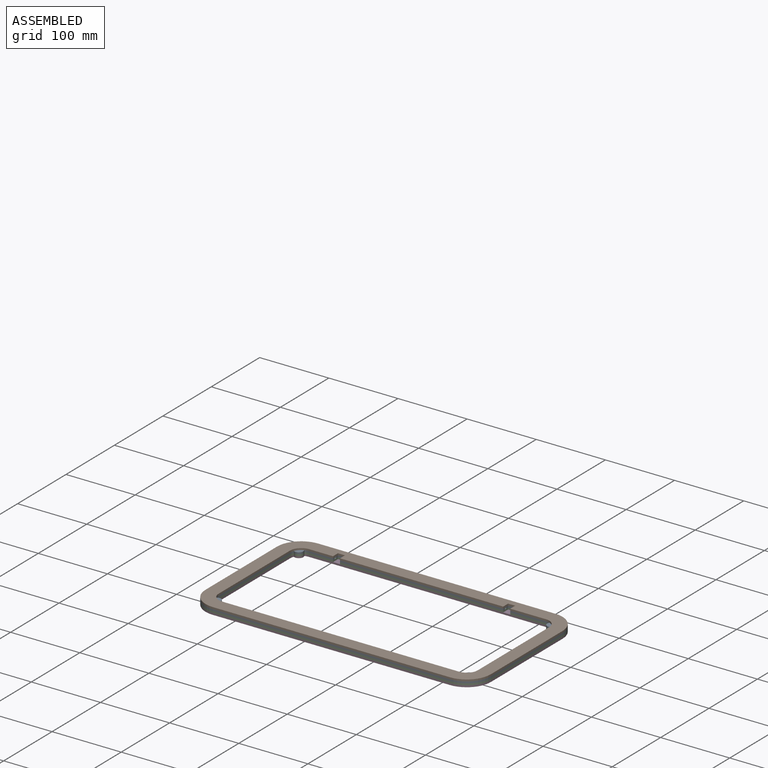
[diagram: assembled view]
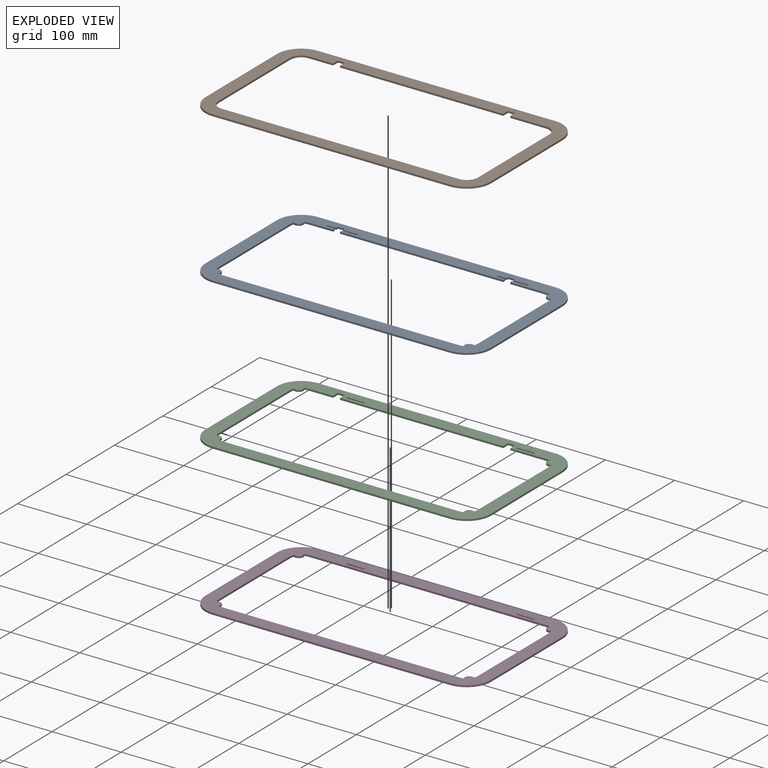
[diagram: exploded view]
GUIDED TOUR — MATED ASSEMBLY (Onshape document 8e4a6fc243fa08abb7a42ebe, AutoMate assembly 8e4a6fc243fa08abb7a42ebe_5dae76b4aeee1ec84f2fb12b_7c1a2a0859e6c54942b80f8e_default)

This assembly has 4 components, labeled P0..P3 below (a component is one placed occurrence of a part; the same part can appear more than once), held together by 3 mates. A mate is a constraint between two components; its type names the relative motion it leaves free:
  FASTENED — locks the two components together rigidly (no relative motion).
Axis/direction vectors are unit vectors and 'through' points are millimeter coordinates, both in the assembly's world frame.

MATES
  1. FASTENED "Fastened 2": P0 <-> P2, direction (0.000, 0.000, -1.000) through (-171.45, 73.82, -2.54) mm
  2. FASTENED "Fastened 1": P0 <-> P1, direction (0.000, 0.000, 1.000) through (-171.45, 73.82, 0.00) mm
  3. FASTENED "Fastened 3": P2 <-> P3, direction (0.000, 0.000, -1.000) through (-171.45, 73.82, -5.08) mm

ASSEMBLY ORDER
  1. P3 — the base component [order verified]
  2. P2 [order verified]
  3. P0 [order verified]
  4. P1 [order verified]
Order-tag legend:
  [order verified] — this step's position reverses a verified removal order: the component was checked to insert without passing through the ones already placed.

Of the 4 components, 1 carries the full construction recipe — the FeatureScript program that regenerates the part's solid from scratch; the rest are supplied as boundary geometry only.
Each toured component is shown spotlighted twice — in the assembled view, then in the exploded view, where a leader line traces a displaced component back to its assembled socket (saturated green if recipe-attached, orange if geometry-only; every other component desaturated gray) — followed by its recipe or geometry summary and the mates that hold it.
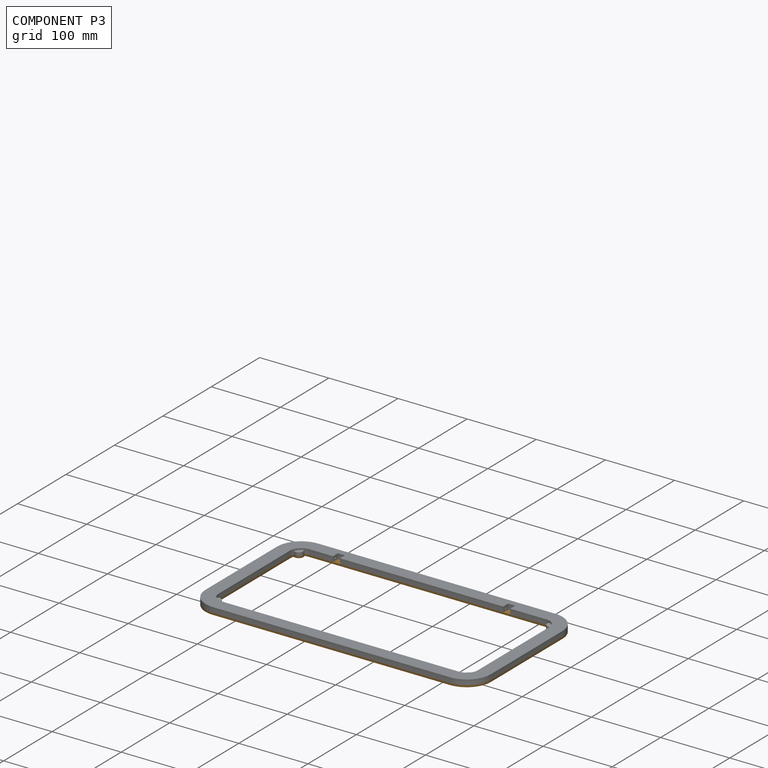
[diagram: component P3 — assembled]
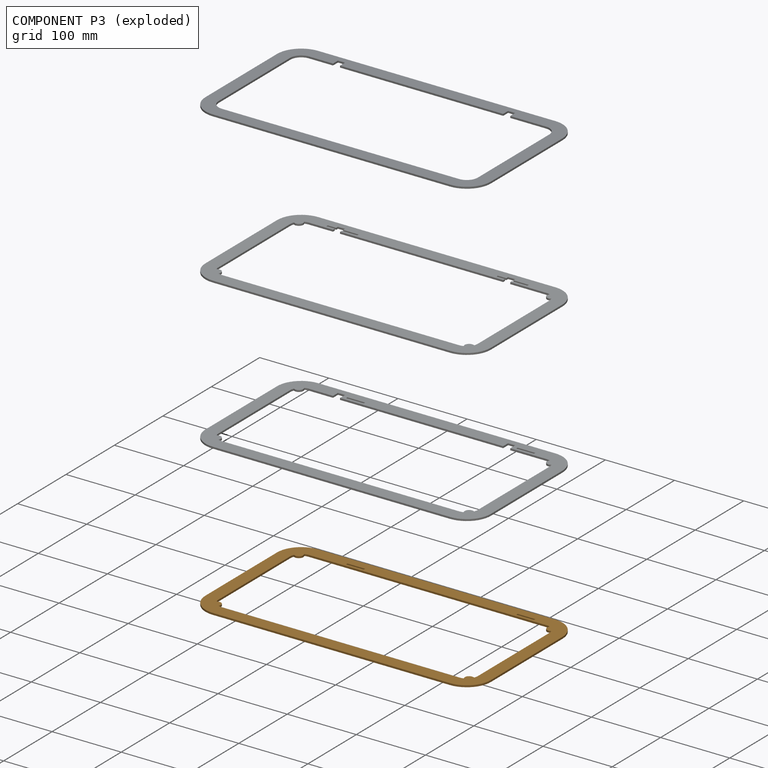
[diagram: component P3 — exploded]
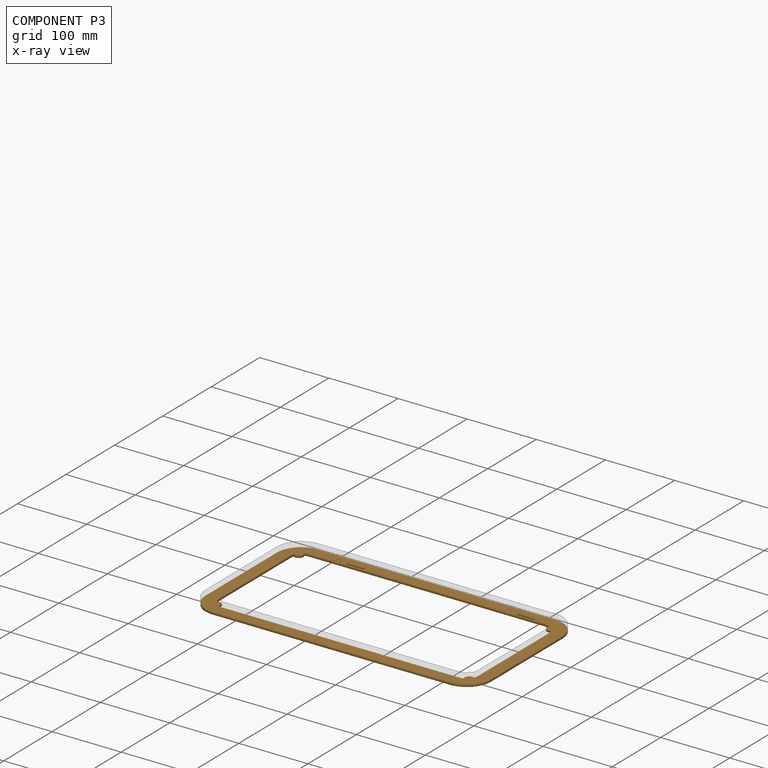
[diagram: component P3 — x-ray view]
COMPONENT P3 — geometry summary (no construction recipe available for this part):
  bounding box: 412.8 x 217.5 x 2.5 mm
  B-rep topology: 1 solid, 34 faces, 192 edges
  volume: 55422 mm^3 (24% of its bounding box)
  symmetry: 2-fold rotationally symmetric about the x axis; 2-fold rotationally symmetric about the y axis; 2-fold rotationally symmetric about the z axis; mirror-symmetric across its x mid-plane, y mid-plane, z mid-plane
Held by: FASTENED mate "Fastened 3" to P2.
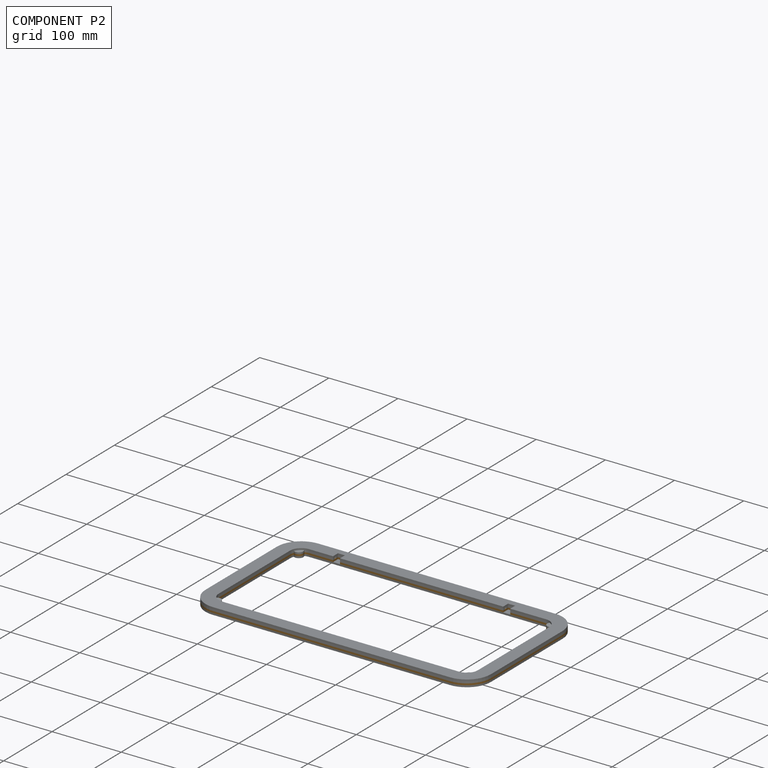
[diagram: component P2 — assembled]
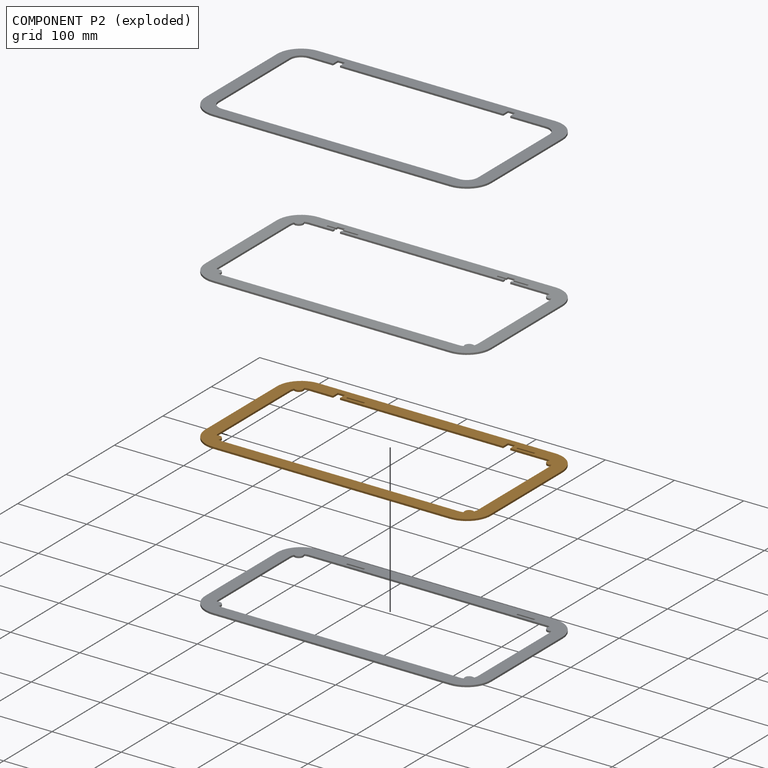
[diagram: component P2 — exploded]
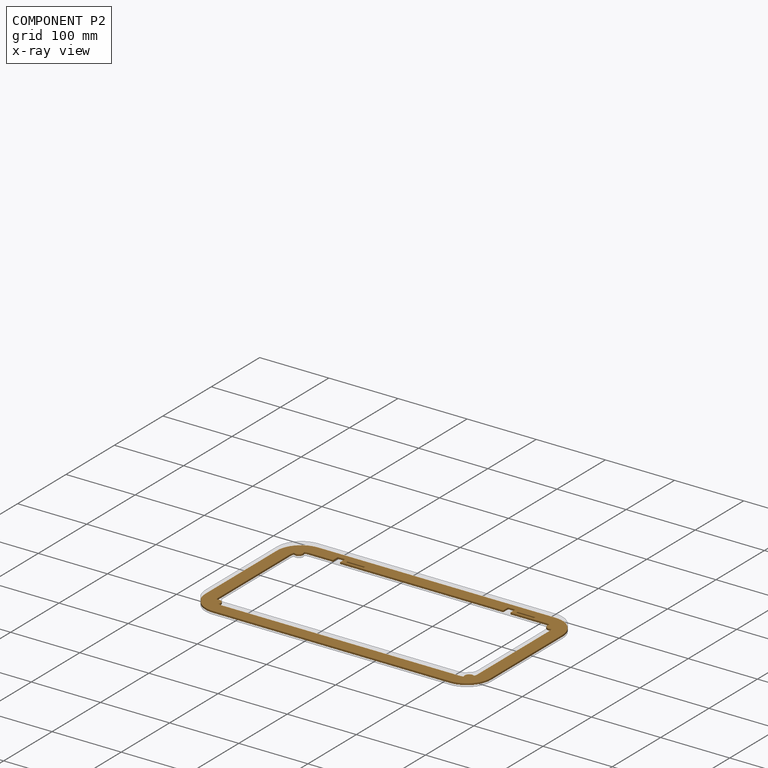
[diagram: component P2 — x-ray view]
COMPONENT P2 — geometry summary (no construction recipe available for this part):
  bounding box: 412.8 x 217.5 x 2.5 mm
  B-rep topology: 1 solid, 42 faces, 240 edges
  volume: 54897 mm^3 (24% of its bounding box)
  symmetry: 2-fold rotationally symmetric about the z axis; mirror-symmetric across its z mid-plane
Held by: FASTENED mate "Fastened 2" to P0; FASTENED mate "Fastened 3" to P3.
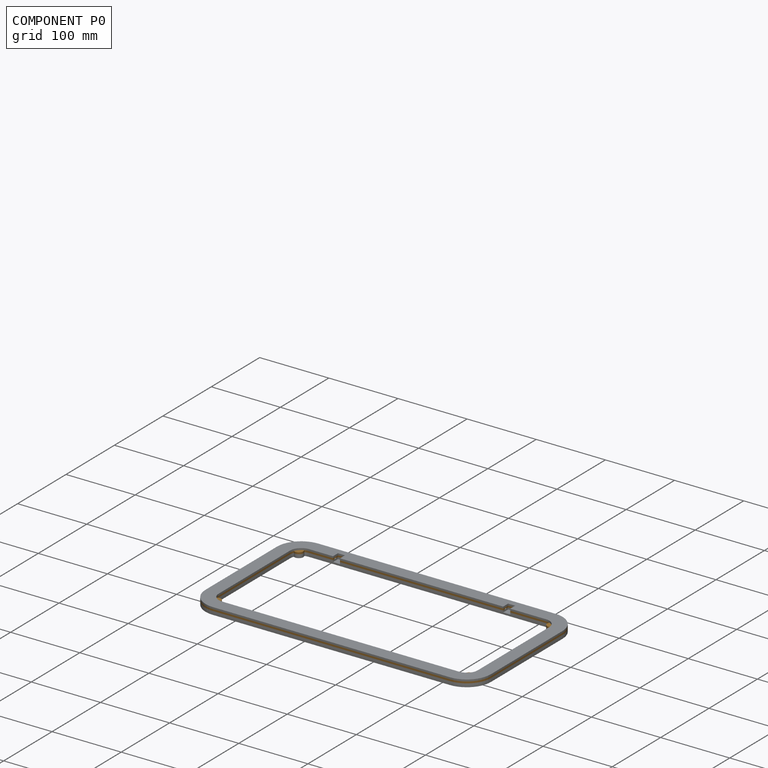
[diagram: component P0 — assembled]
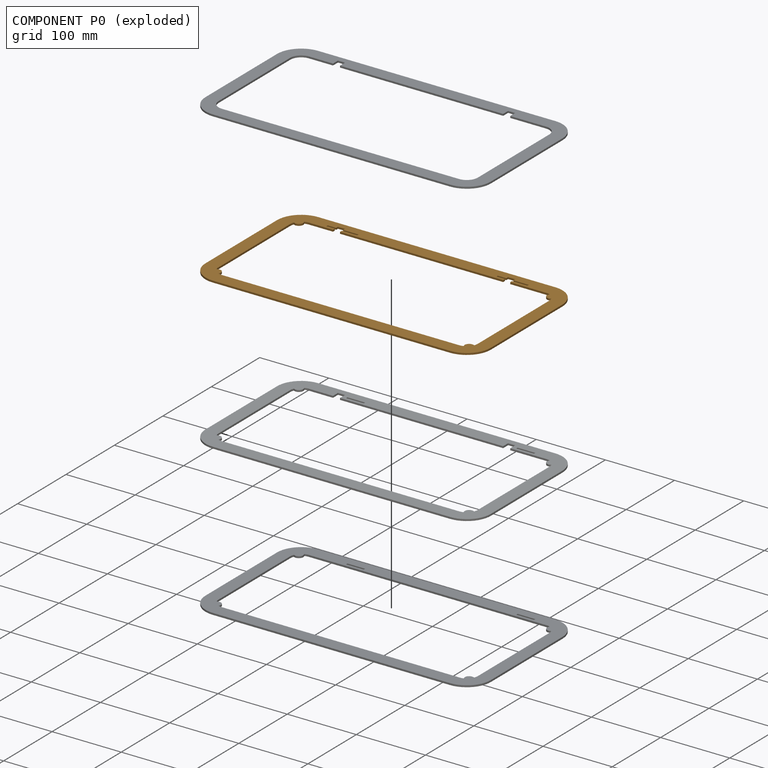
[diagram: component P0 — exploded]
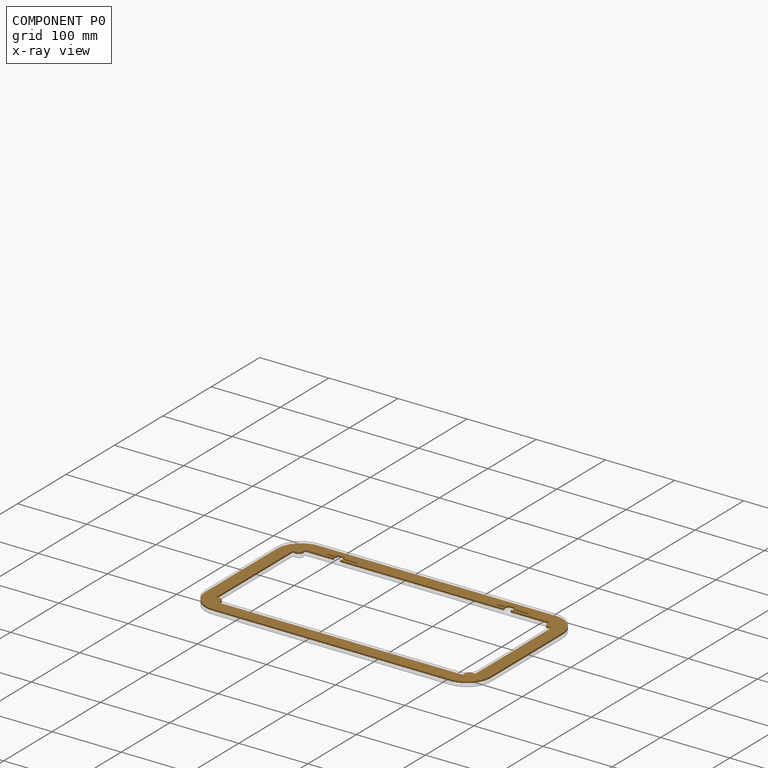
[diagram: component P0 — x-ray view]
COMPONENT P0 — geometry summary (no construction recipe available for this part):
  bounding box: 412.8 x 217.5 x 2.5 mm
  B-rep topology: 1 solid, 50 faces, 288 edges
  volume: 54771 mm^3 (24% of its bounding box)
  symmetry: 2-fold rotationally symmetric about the z axis; mirror-symmetric across its z mid-plane
Held by: FASTENED mate "Fastened 2" to P2; FASTENED mate "Fastened 1" to P1.
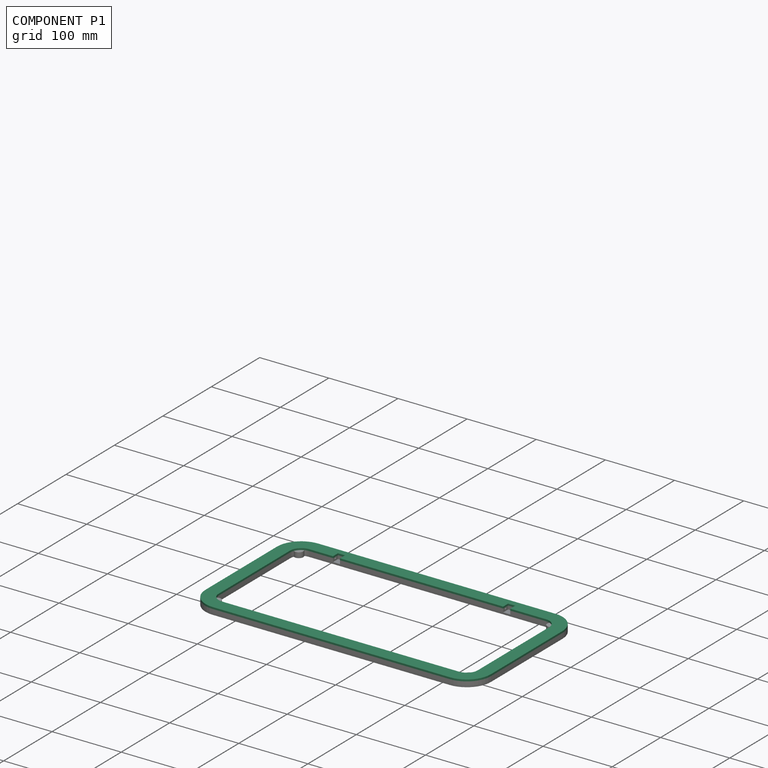
[diagram: component P1 — assembled]
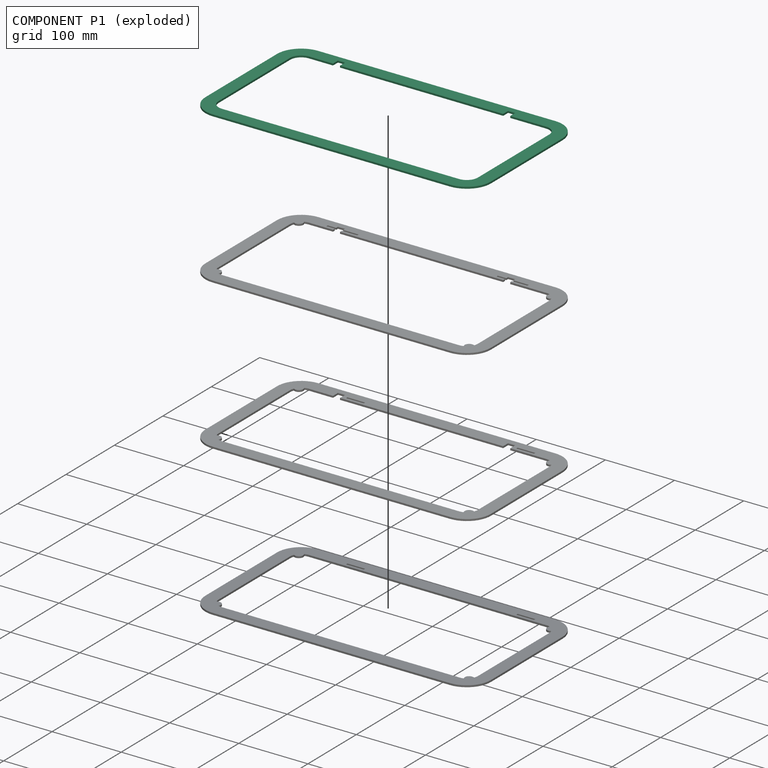
[diagram: component P1 — exploded]
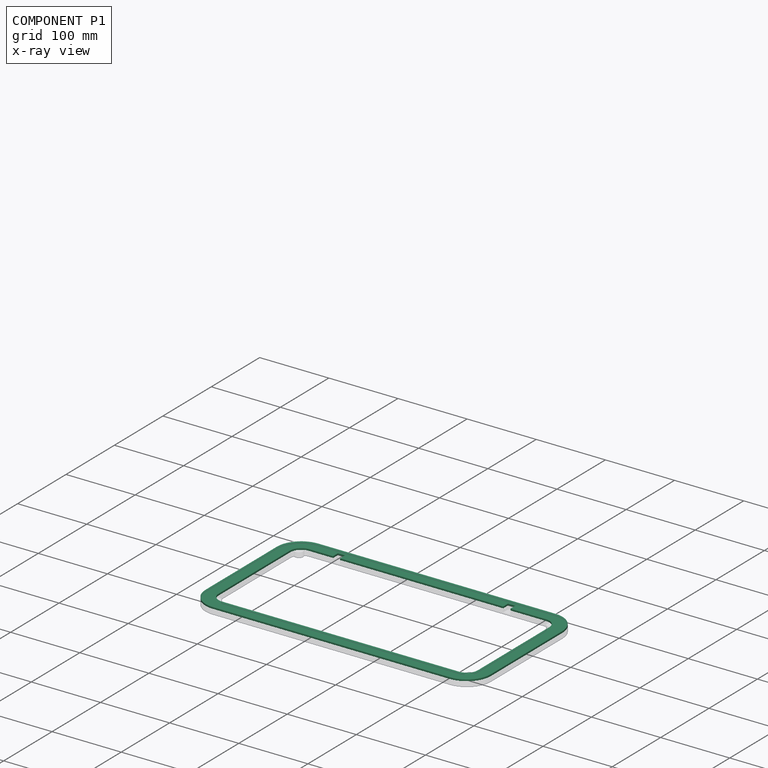
[diagram: component P1 — x-ray view]
COMPONENT P1 — recipe-attached (CADFS 00196776, mesh-verified: the recipe's output STEP matches this component's geometry to below the mesh-comparison resolution (tessellation chordal tolerance ~0.7 mm)).
Held by: FASTENED mate "Fastened 1" to P0.
Construction recipe (FeatureScript — the CAD program that rebuilds this solid; sketch coordinates are in the units given by the * unit suffixes, e.g. mm):

FeatureScript 1511;
import(path : "onshape/std/geometry.fs", version : "1511.0");
import(path : "onshape/std/common.fs", version : "1511.0");
const mm = millimeter;
const VERTEX = EntityType.VERTEX;
const EDGE = EntityType.EDGE;
const FACE = EntityType.FACE;
const BODY = EntityType.BODY;
function v(x, y){return vector(x, y);}
function OD(order){return orderDisambiguation(order);}
function OSD(set){return originalSetDisambiguation(set);}
function TD(topology){return topologyDisambiguation(topology);}
function TDD(query){return trueDependencyDisambiguation(query);}
function sQuery(a, b, c) {return sketchEntityQuery(a, b, c);}

annotation { "Feature Type Name" : "Feature", "Feature Type Description" : "" }
export const myFeature = defineFeature(function(context is Context, id is Id, definition is map)
    precondition{}
    {
        {
            var Q0;
            Q0=qCreatedBy(makeId("Top.planeOp"),FACE);
            var sketch = newSketch(context, id + "F0", { "sketchPlane" : qUnion([Q0])});
            skLineSegment(sketch, "E0.bottom", {"start": v(171.45, -89.7) * mm, "end": v(-171.45, -89.7) * mm});
            skLineSegment(sketch, "E0.top", {"start": v(171.45, 89.7) * mm, "end": v(-171.45, 89.7) * mm});
            skLineSegment(sketch, "E0.left", {"start": v(187.33, -73.82) * mm, "end": v(187.33, 73.82) * mm});
            skLineSegment(sketch, "E0.right", {"start": v(-187.32, -73.82) * mm, "end": v(-187.33, 73.82) * mm});
            skPoint(sketch, "E0.middle", {"position": v(0, 0) * mm});
            skPoint(sketch, "E1.visualSharp", {"position": v(-187.33, 89.7) * mm});
            skArc(sketch, "E1.filletArc", {"start": v(-171.45, 89.7) * mm, "mid": v(-182.68, 85.04) * mm, "end": v(-187.33, 73.82) * mm});
            skPoint(sketch, "E2.visualSharp", {"position": v(-187.33, -89.7) * mm});
            skArc(sketch, "E2.filletArc", {"start": v(-187.32, -73.82) * mm, "mid": v(-182.68, -85.04) * mm, "end": v(-171.45, -89.7) * mm});
            skPoint(sketch, "E3.visualSharp", {"position": v(187.33, -89.7) * mm});
            skArc(sketch, "E3.filletArc", {"start": v(171.45, -89.7) * mm, "mid": v(182.68, -85.04) * mm, "end": v(187.33, -73.82) * mm});
            skPoint(sketch, "E4.visualSharp", {"position": v(187.33, 89.7) * mm});
            skArc(sketch, "E4.filletArc", {"start": v(187.33, 73.82) * mm, "mid": v(182.68, 85.04) * mm, "end": v(171.45, 89.7) * mm});
            skArc(sketch, "E5.0", {"start": v(206.38, 73.82) * mm, "mid": v(196.15, 98.51) * mm, "end": v(171.45, 108.74) * mm});
            skLineSegment(sketch, "E5.1", {"start": v(206.38, -73.82) * mm, "end": v(206.38, 73.82) * mm});
            skLineSegment(sketch, "E5.2", {"start": v(171.45, 108.74) * mm, "end": v(-171.45, 108.74) * mm});
            skArc(sketch, "E5.3", {"start": v(171.45, -108.74) * mm, "mid": v(196.15, -98.51) * mm, "end": v(206.38, -73.82) * mm});
            skArc(sketch, "E5.4", {"start": v(-171.45, 108.74) * mm, "mid": v(-196.15, 98.51) * mm, "end": v(-206.38, 73.82) * mm});
            skLineSegment(sketch, "E5.5", {"start": v(-206.38, -73.82) * mm, "end": v(-206.38, 73.82) * mm});
            skArc(sketch, "E5.6", {"start": v(-206.37, -73.82) * mm, "mid": v(-196.15, -98.51) * mm, "end": v(-171.45, -108.74) * mm});
            skLineSegment(sketch, "E5.7", {"start": v(171.45, -108.74) * mm, "end": v(-171.45, -108.74) * mm});
            skSolve(sketch);
        }
        {
            var Q0;
            Q0 = qSketchRegion(id + "F0", true);
            extrude(context, id + "F1", {"entities" : qUnion([Q0]), "depth" : 2.54 * mm});
        }
        {
            var Q0;
            Q0=makeQuery(id+"F1.opExtrude","CAP_FACE",FACE,{"disambiguationData":[OSD([sQuery(id+"F0.wireOp",EDGE,"E0.bottom"),sQuery(id+"F0.wireOp",EDGE,"E0.top"),sQuery(id+"F0.wireOp",EDGE,"E0.left"),sQuery(id+"F0.wireOp",EDGE,"E0.right"),sQuery(id+"F0.wireOp",EDGE,"E1.filletArc"),sQuery(id+"F0.wireOp",EDGE,"E2.filletArc"),sQuery(id+"F0.wireOp",EDGE,"E3.filletArc"),sQuery(id+"F0.wireOp",EDGE,"E4.filletArc"),sQuery(id+"F0.wireOp",EDGE,"E5.0"),sQuery(id+"F0.wireOp",EDGE,"E5.1"),sQuery(id+"F0.wireOp",EDGE,"E5.2"),sQuery(id+"F0.wireOp",EDGE,"E5.3"),sQuery(id+"F0.wireOp",EDGE,"E5.4"),sQuery(id+"F0.wireOp",EDGE,"E5.5"),sQuery(id+"F0.wireOp",EDGE,"E5.6"),sQuery(id+"F0.wireOp",EDGE,"E5.7")])],"isStart":false});
            var sketch = newSketch(context, id + "F2", { "sketchPlane" : qUnion([Q0])});
            skLineSegment(sketch, "E6.bottom", {"start": v(-136.53, 89.7) * mm, "end": v(-126.37, 89.7) * mm});
            skLineSegment(sketch, "E6.top", {"start": v(-136.53, 99.85) * mm, "end": v(-126.37, 99.85) * mm});
            skLineSegment(sketch, "E6.left", {"start": v(-136.53, 89.7) * mm, "end": v(-136.53, 99.85) * mm});
            skLineSegment(sketch, "E6.right", {"start": v(-126.37, 89.7) * mm, "end": v(-126.37, 99.85) * mm});
            skLineSegment(sketch, "E7.bottom", {"start": v(109.54, 89.7) * mm, "end": v(119.7, 89.7) * mm});
            skLineSegment(sketch, "E7.top", {"start": v(109.54, 99.85) * mm, "end": v(119.7, 99.85) * mm});
            skLineSegment(sketch, "E7.left", {"start": v(109.54, 89.7) * mm, "end": v(109.54, 99.85) * mm});
            skLineSegment(sketch, "E7.right", {"start": v(119.7, 89.7) * mm, "end": v(119.7, 99.85) * mm});
            skSolve(sketch);
        }
        {
            var Q0;
            Q0 = qSketchRegion(id + "F2", true);
            extrude(context, id + "F3", {"entities" : qUnion([Q0]), "operationType" : NewBodyOperationType.REMOVE, "endBound" : BoundingType.UP_TO_NEXT, "oppositeDirection" : true, "depth" : 25.4 * mm});
        }
    });
PROVENANCE & LICENSES
Assembly (occurrences, transforms, mates, per-part STEP geometry): AutoMate dataset, Zenodo record 7776208, CC0.
Construction recipes: CADFS (HuggingFace VladPyatov/CADFS, CC-BY-4.0, layered over the ABC dataset), FeatureScript reconstruction programs keyed by ABC model id.
Join: ABC meta listings map ABC model id -> Onshape documentId; within a shared document, parts are matched by geometric signature (bounding-box dims + volume at 0.1% relative tolerance, exact B-rep face/solid counts).
Verification: 1 of this assembly's 4 components carries a recipe attachment, and every attachment is mesh-verified: the CADFS STEP and the AutoMate member STEP were compared as meshes in their shared local frame (symmetric sampled-point-to-mesh distance); worst across the 1 attachment: below the mesh-comparison resolution (tessellation chordal tolerance ~0.7 mm) on a 467 mm part.
Renders: orthographic iso camera (az 35 / el 25); the floor grid conveys scale (grid pitch printed in each image; no ruler). In the exploded view each component is displaced by its stored offset vector: the offsets alone carry the explosion direction (mate normal/axis signs are not orientation cues and do not encode it), and separation distances are assigned per mate-chain, not proportionally to assembly-order depth.
